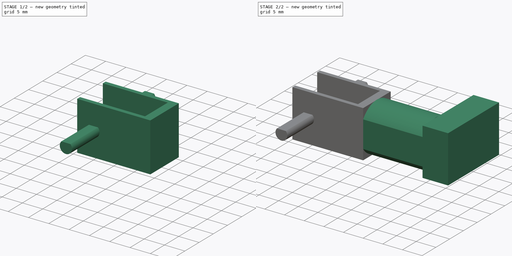
[diagram: build sequence overview — one tinted view per stage of 2, left to right]
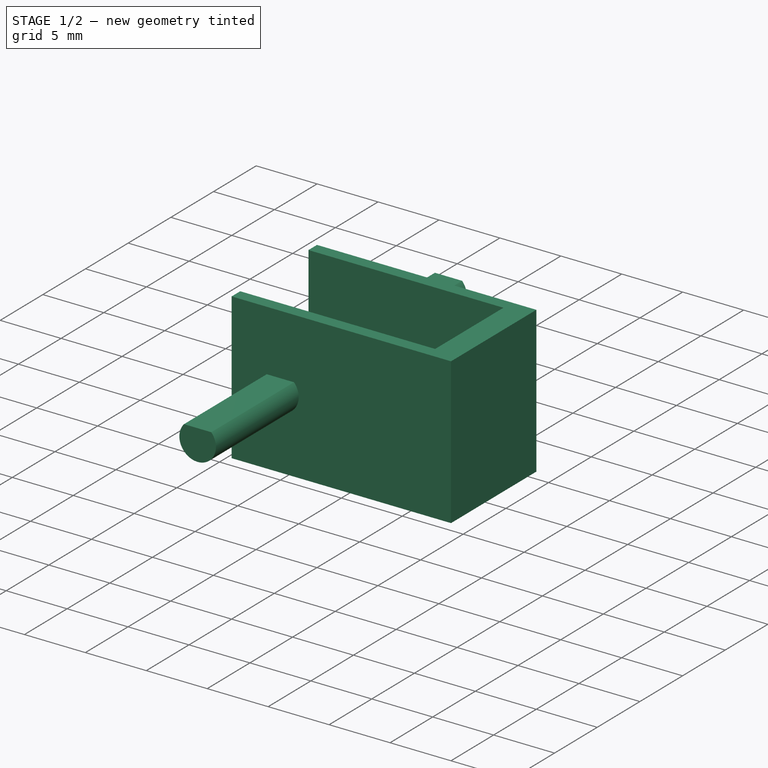
[diagram: stage 1 of 2 — iso view after this stage's code; geometry added in this stage tinted green]
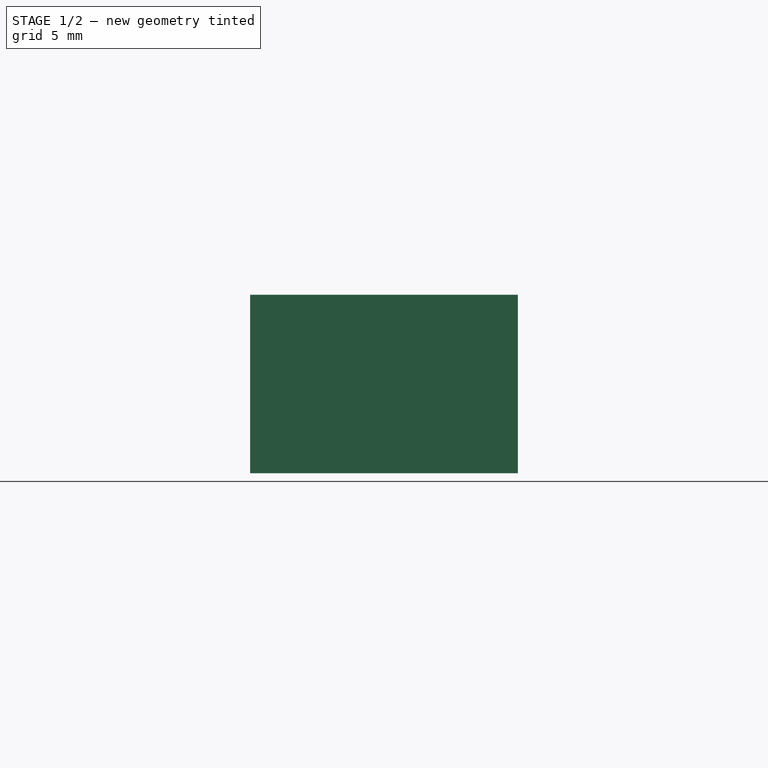
[diagram: stage 1 of 2 — front view after this stage's code; geometry added in this stage tinted green]
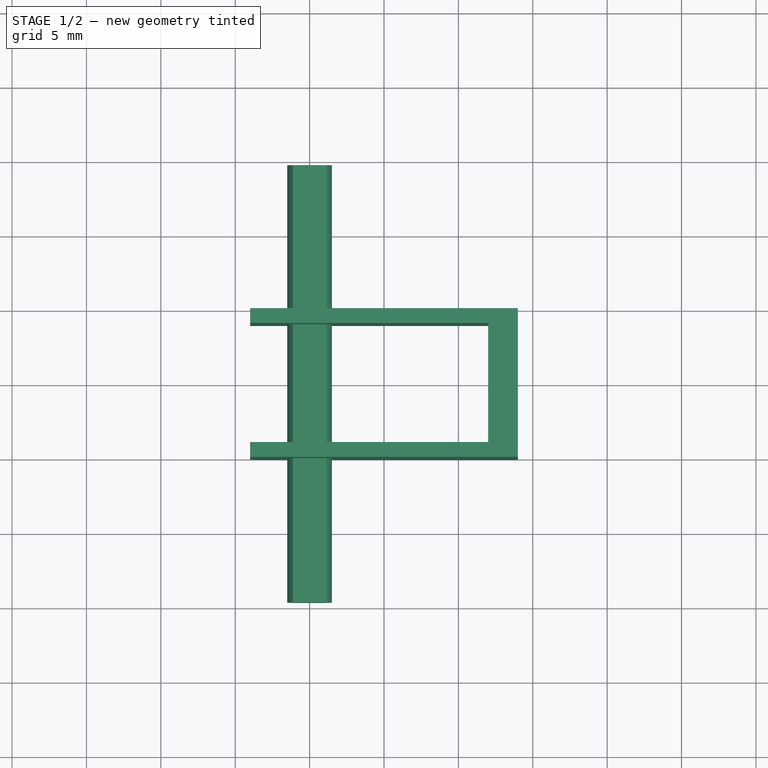
[diagram: stage 1 of 2 — top view after this stage's code; geometry added in this stage tinted green]
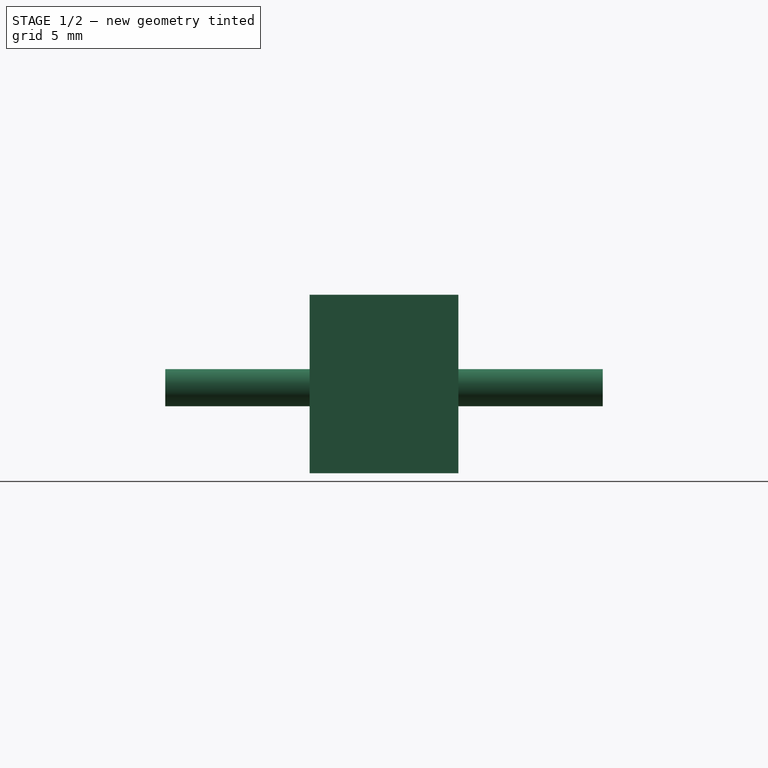
[diagram: stage 1 of 2 — right view after this stage's code; geometry added in this stage tinted green]
FCSTD DOCUMENT  (FreeCAD 0.21R33668 +7 (Git))
Label: GW1812
License: All rights reserved
LicenseURL: https://en.wikipedia.org/wiki/All_rights_reserved
objects: Sketcher::SketchObject×4, PartDesign::Pad×4, PartDesign::Plane×2, PartDesign::Body×1
note: 15 computed .brp shape members not serialized (recipe doc carries the construction recipe); baked Part::Feature solids carry a one-line shape summary decoded from their .brp

FEATURE [Sketcher::SketchObject] Sketch
  FullyConstrained = true
  MapMode = 5
  Support = -> [XY_Plane]
  sketch-geometry (8):
    g0: LineSegment StartX=-4 StartY=5 StartZ=0 EndX=14 EndY=5 EndZ=0
    g1: LineSegment StartX=14 StartY=5 StartZ=0 EndX=14 EndY=-5 EndZ=0
    g2: LineSegment StartX=14 StartY=-5 StartZ=0 EndX=-4 EndY=-5 EndZ=0
    g3: LineSegment StartX=-4 StartY=5 StartZ=0 EndX=-4 EndY=4 EndZ=0
    g4: LineSegment StartX=-4 StartY=4 StartZ=0 EndX=12 EndY=4 EndZ=0
    g5: LineSegment StartX=12 StartY=4 StartZ=0 EndX=12 EndY=-4 EndZ=0
    g6: LineSegment StartX=12 StartY=-4 StartZ=0 EndX=-4 EndY=-4 EndZ=0
    g7: LineSegment StartX=-4 StartY=-4 StartZ=0 EndX=-4 EndY=-5 EndZ=0
  constraints (23):
    c: Coincident(g0,g1)
    c: Coincident(g1,g2)
    c: Horizontal(g0)
    c: Horizontal(g2)
    c: Vertical(g1)
    c: DistanceX(g0,g-1) = 4
    c: DistanceY(g2,g0) = 10
    c: Symmetric(g0,g2,g-1)
    c: DistanceX(g0,g0) = 18
    c: Coincident(g0,g3)
    c: Vertical(g3)
    c: Coincident(g3,g4)
    c: Horizontal(g4)
    c: Coincident(g4,g5)
    c: Vertical(g5)
    c: Coincident(g5,g6)
    c: Horizontal(g6)
    c: Coincident(g6,g7)
    c: Coincident(g7,g2)
    c: Vertical(g7)
    c: Equal(g3,g7)
    c: DistanceY(g7,g7) = 1
    c: DistanceX(g5,g1) = 2
FEATURE [PartDesign::Pad] Pad  label="gearbox"
  Direction = (0,0,1)
  Length = 12
  Length2 = 10
  Midplane = true
  Profile = -> Sketch
  ReferenceAxis = -> Sketch [N_Axis]
  Type = 0
FEATURE [Sketcher::SketchObject] Sketch001
  FullyConstrained = true
  MapMode = 5
  Placement = pos=(0,0,0) rot=(1,0,0;1.5708rad)
  Support = -> [XZ_Plane]
  sketch-geometry (3):
    g0: ArcOfCircle CenterX=0 CenterY=0 CenterZ=0 NormalX=0 NormalY=0 NormalZ=1 AngleXU=0 Radius=1.5 StartAngle=2.41186 EndAngle=7.01291
    g1: LineSegment StartX=-1.11803 StartY=1 StartZ=0 EndX=1.11803 EndY=1 EndZ=0
    g2: GeomPoint X=0 Y=-1.5 Z=0
  constraints (8):
    c: Coincident(g0,g-1)
    c: Coincident(g1,g0)
    c: Coincident(g1,g0)
    c: Horizontal(g1)
    c: PointOnObject(g2,g0)
    c: PointOnObject(g2,g-2)
    c: DistanceY(g2,g0) = 2.5
    c: Diameter(g0) = 3
FEATURE [PartDesign::Pad] Pad001  label="shaft"
  BaseFeature = -> Pad
  Direction = (0,-1,-2e-16)
  Length = 29.4
  Length2 = 10
  Midplane = true
  Profile = -> Sketch001
  ReferenceAxis = -> Sketch001 [N_Axis]
  Type = 0
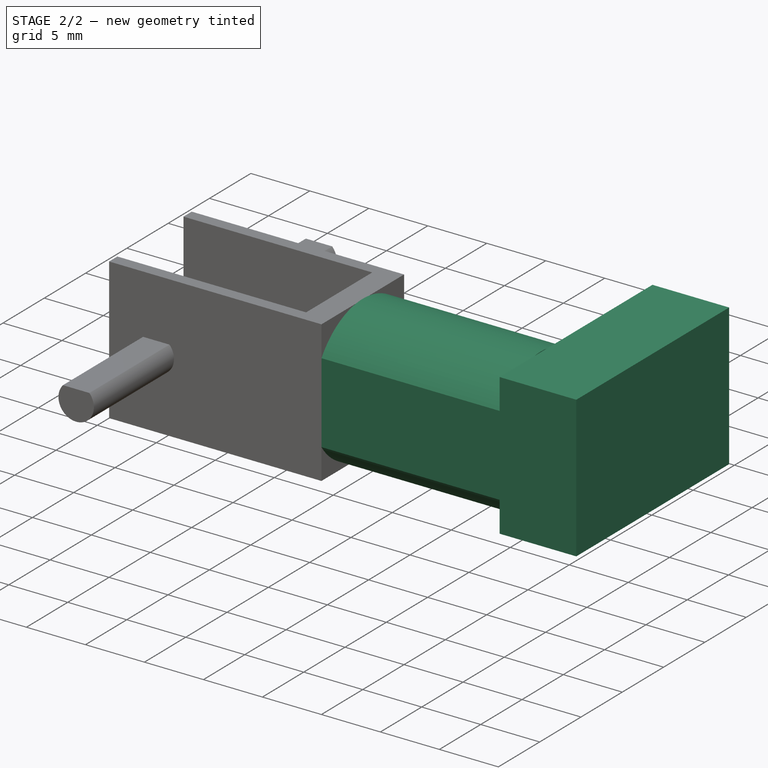
[diagram: stage 2 of 2 — iso view after this stage's code; geometry added in this stage tinted green]
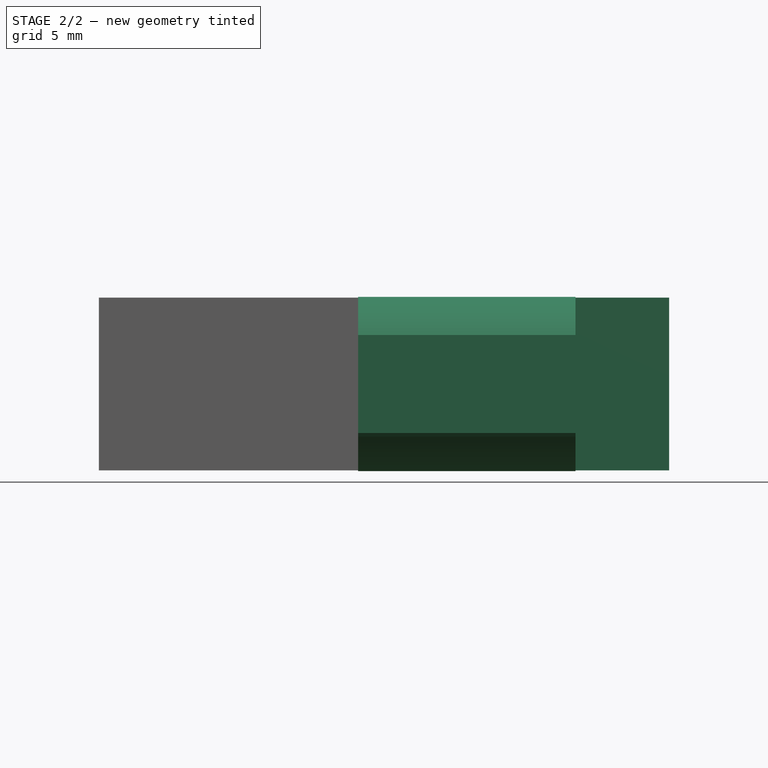
[diagram: stage 2 of 2 — front view after this stage's code; geometry added in this stage tinted green]
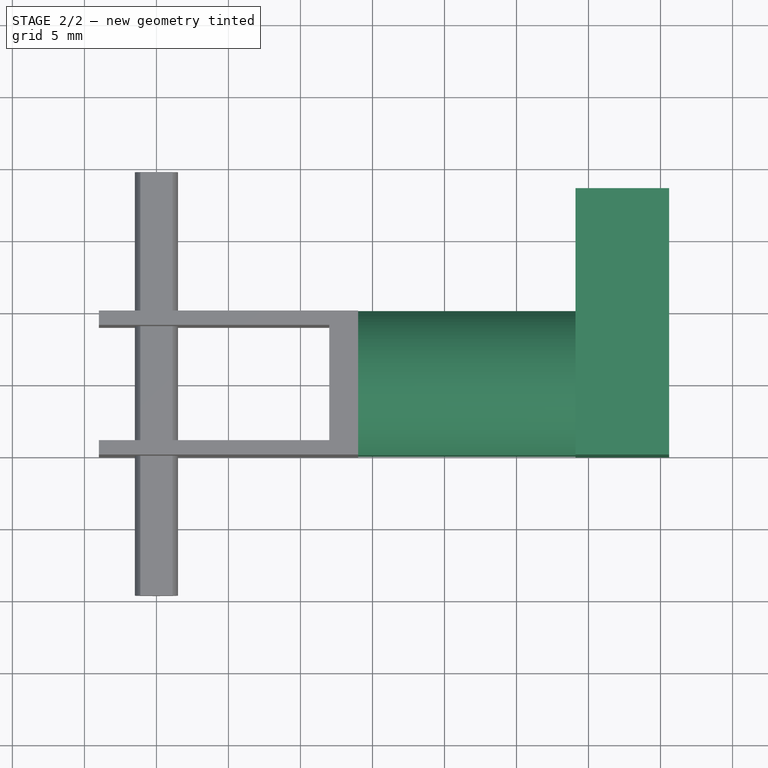
[diagram: stage 2 of 2 — top view after this stage's code; geometry added in this stage tinted green]
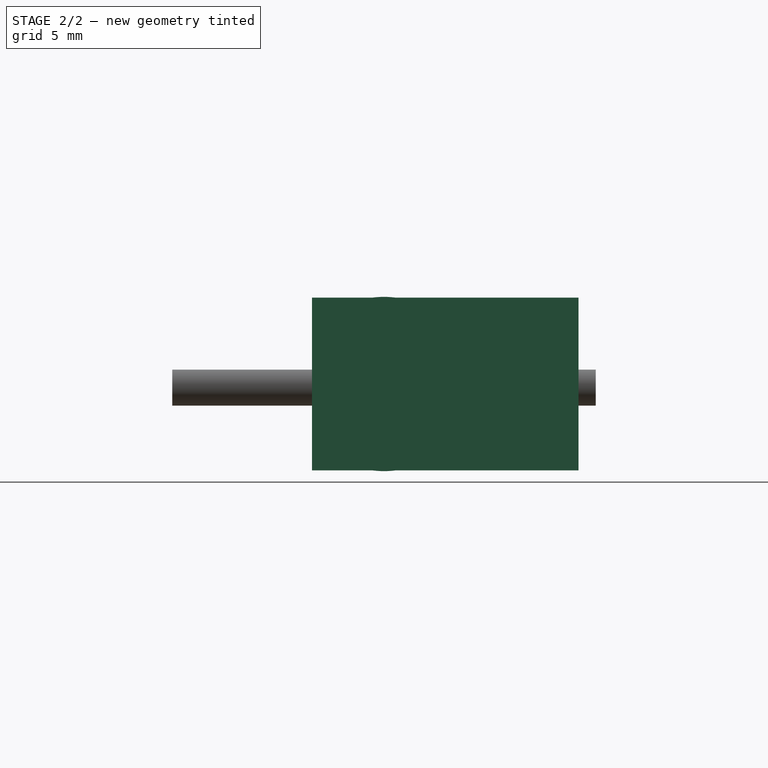
[diagram: stage 2 of 2 — right view after this stage's code; geometry added in this stage tinted green]
FEATURE [PartDesign::Plane] DatumPlane  label="motor-gearbox joint"
  Length = 60
  MapMode = 5
  Placement = pos=(14,0,0) rot=(0.57735,0.57735,0.57735;2.0944rad)
  ResizeMode = 0
  Support = -> [Pad001]
  Width = 60
FEATURE [Sketcher::SketchObject] Sketch002
  FullyConstrained = true
  MapMode = 5
  Placement = pos=(14,0,0) rot=(0.57735,0.57735,0.57735;2.0944rad)
  Support = -> [DatumPlane]
  sketch-geometry (4):
    g0: ArcOfCircle CenterX=0 CenterY=0 CenterZ=0 NormalX=0 NormalY=0 NormalZ=1 AngleXU=0 Radius=6.05 StartAngle=0.59803 EndAngle=2.54356
    g1: ArcOfCircle CenterX=0 CenterY=0 CenterZ=0 NormalX=0 NormalY=0 NormalZ=1 AngleXU=0 Radius=6.05 StartAngle=3.73962 EndAngle=5.68516
    g2: LineSegment StartX=-5 StartY=-3.40624 StartZ=0 EndX=-5 EndY=3.40624 EndZ=0
    g3: LineSegment StartX=5 StartY=3.40624 StartZ=0 EndX=5 EndY=-3.40624 EndZ=0
  constraints (12):
    c: Coincident(g0,g-1)
    c: Coincident(g1,g0)
    c: Coincident(g2,g1)
    c: Coincident(g2,g0)
    c: Coincident(g3,g0)
    c: Coincident(g3,g1)
    c: Vertical(g3)
    c: Vertical(g2)
    c: Equal(g1,g0)
    c: Diameter(g0) = 12.1
    c: DistanceX(g0,g0) = 10
    c: Equal(g3,g2)
FEATURE [PartDesign::Pad] Pad002  label="motor"
  BaseFeature = -> Pad001
  Direction = (1,0,0)
  Length = 15.1
  Length2 = 10
  Profile = -> Sketch002
  ReferenceAxis = -> Sketch002 [N_Axis]
  Type = 0
FEATURE [PartDesign::Plane] DatumPlane001  label="motor-encoder joint"
  Length = 60
  MapMode = 5
  Placement = pos=(29.1,0,0) rot=(0.57735,0.57735,0.57735;2.0944rad)
  ResizeMode = 0
  Support = -> [Pad002]
  Width = 60
FEATURE [Sketcher::SketchObject] Sketch003
  FullyConstrained = true
  MapMode = 5
  Placement = pos=(29.1,0,0) rot=(0.57735,0.57735,0.57735;2.0944rad)
  Support = -> [DatumPlane001]
  sketch-geometry (4):
    g0: LineSegment StartX=-5 StartY=6 StartZ=0 EndX=13.5 EndY=6 EndZ=0
    g1: LineSegment StartX=13.5 StartY=6 StartZ=0 EndX=13.5 EndY=-6 EndZ=0
    g2: LineSegment StartX=13.5 StartY=-6 StartZ=0 EndX=-5 EndY=-6 EndZ=0
    g3: LineSegment StartX=-5 StartY=-6 StartZ=0 EndX=-5 EndY=6 EndZ=0
  constraints (11):
    c: Coincident(g0,g1)
    c: Coincident(g1,g2)
    c: Coincident(g2,g3)
    c: Coincident(g3,g0)
    c: Horizontal(g0)
    c: Horizontal(g2)
    c: Vertical(g1)
    c: DistanceX(g0,g0) = 18.5
    c: DistanceY(g3,g3) = 12
    c: Symmetric(g0,g2,g-1)
    c: DistanceX(g2,g-1) = 5
FEATURE [PartDesign::Pad] Pad003  label="encoder"
  BaseFeature = -> Pad002
  Direction = (1,0,0)
  Length = 6.5
  Length2 = 10
  Profile = -> Sketch003
  ReferenceAxis = -> Sketch003 [N_Axis]
  Type = 0
FEATURE [PartDesign::Body] Body  label="GW1812"
  Group = -> [Sketch,Pad,Sketch001,Pad001,DatumPlane,Sketch002,Pad002,DatumPlane001,Sketch003,Pad003]
  Origin = -> Origin
  Tip = -> Pad003
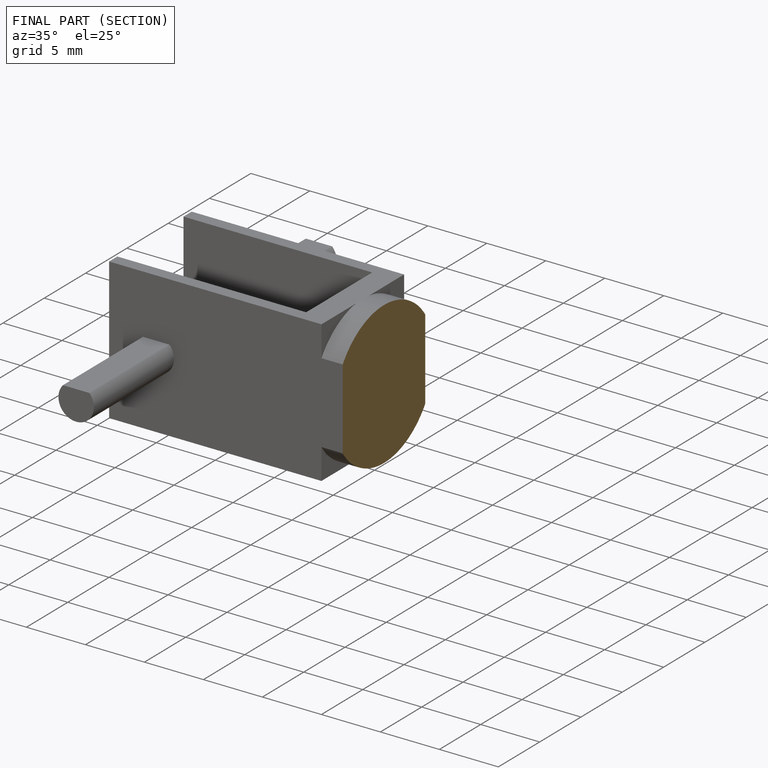
[diagram: finished part — half-section view (interior)]
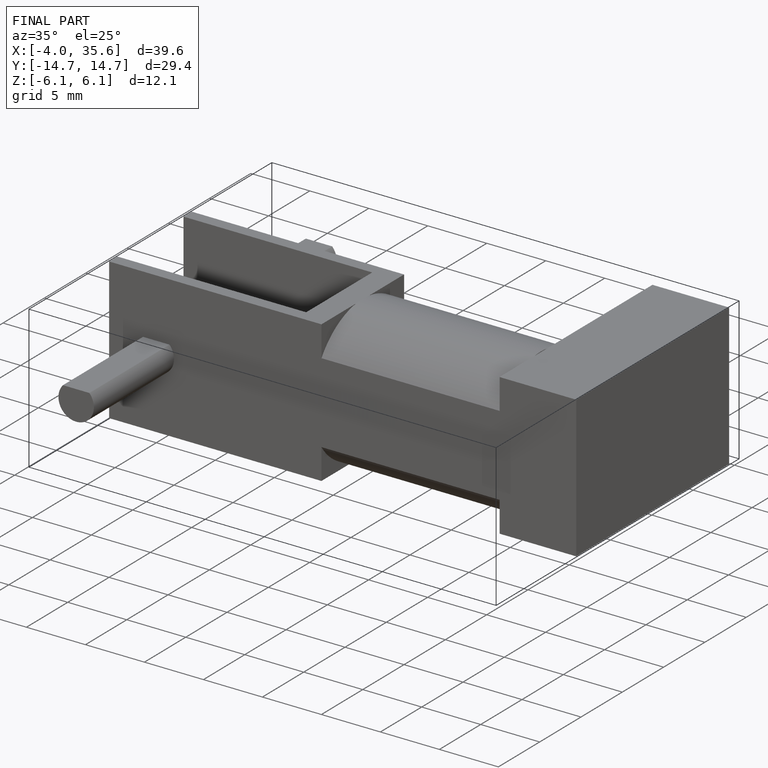
[diagram: finished part — iso view with bounding-box wireframe]
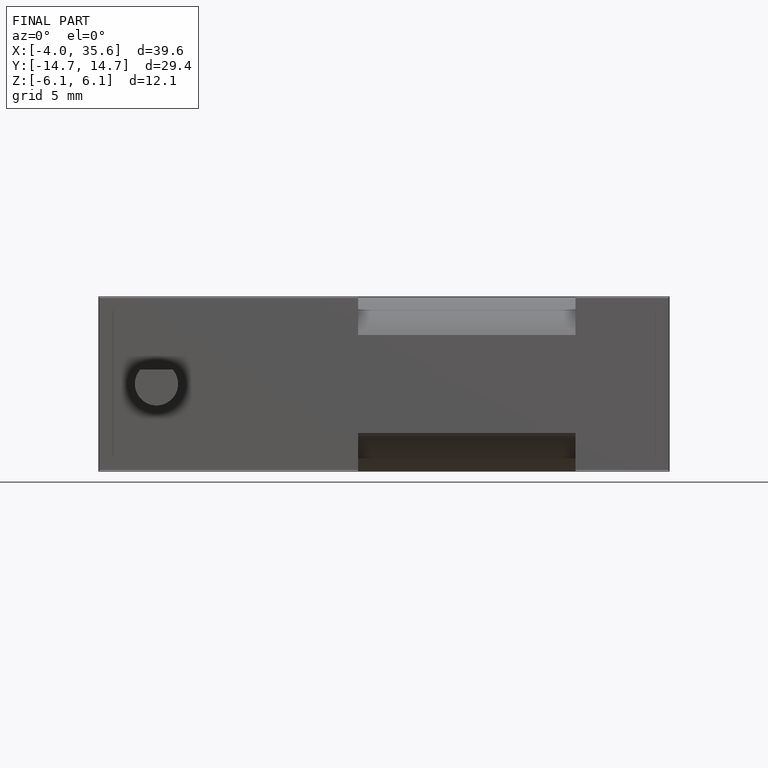
[diagram: finished part — front view with bounding-box wireframe]
